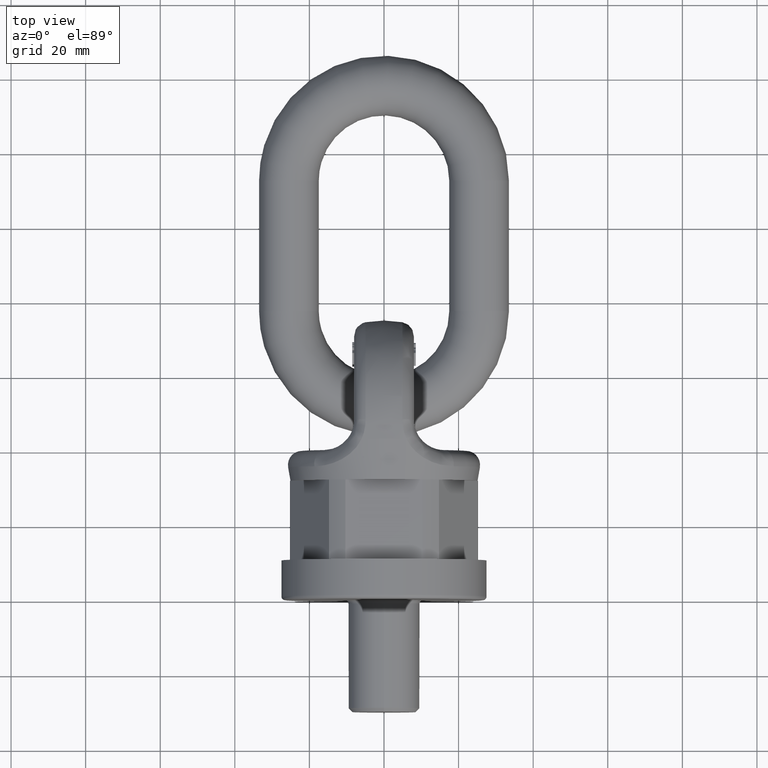
[diagram: clean part render]
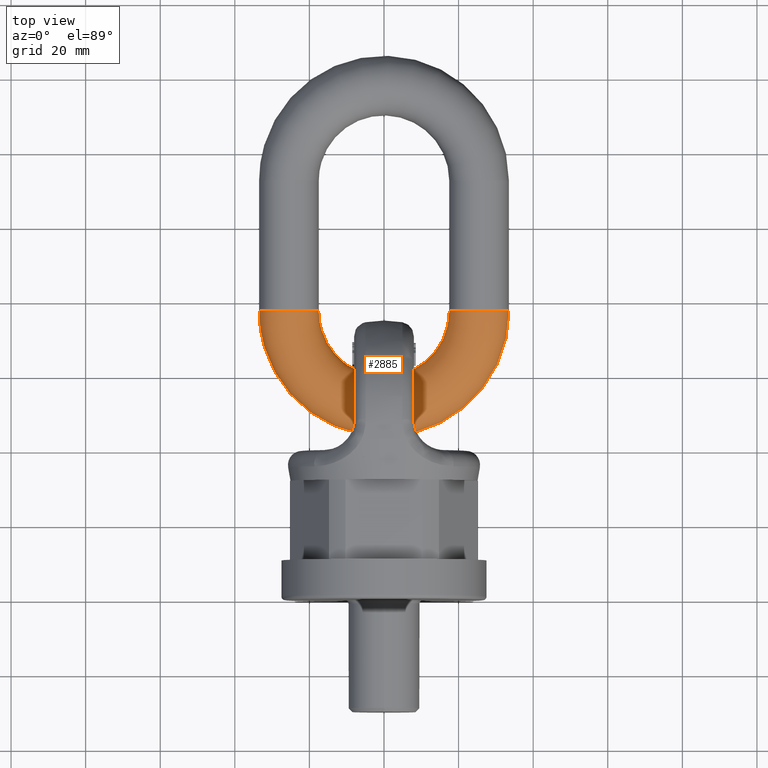
[diagram: same view with one face highlighted and labeled with its STEP entity id]
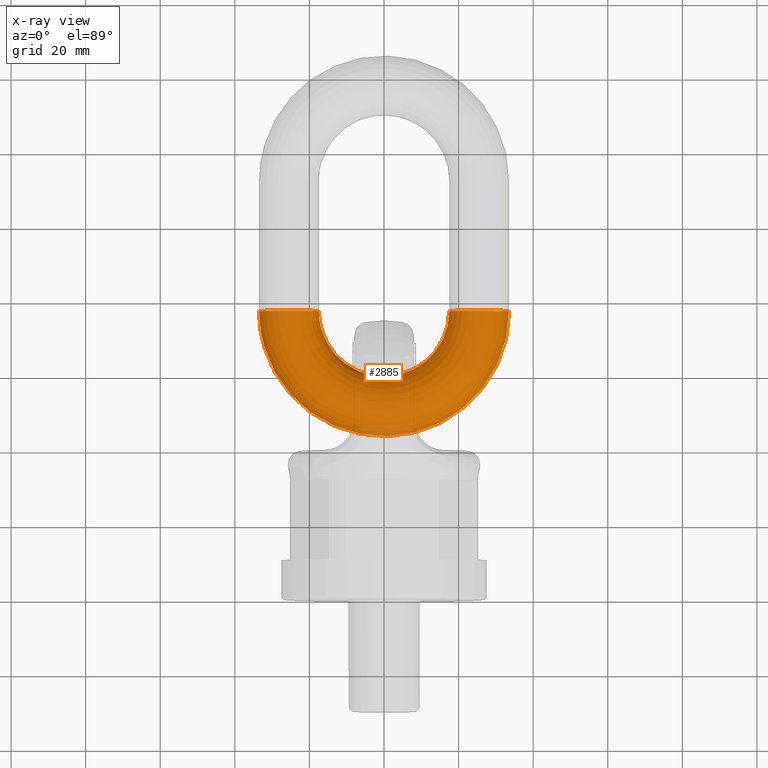
[diagram: x-ray of the same camera — body ghosted, the highlighted face saturated]
A machine part, top view. The second image highlights one B-rep face of the part: STEP entity #2885.
The next image is the same camera in x-ray: the body ghosted, the highlighted face saturated — about 3% of this face is hidden behind the body in this view.
In plain terms, the highlighted toroidal blend (fillet) surface has major radius 25.5 mm and minor (blend) radius 8 mm.
Its self-contained STEP definition (entity closure, byte-faithful):
#1804=TOROIDAL_SURFACE('',#5805,25.5,8.);
#2885=ADVANCED_FACE('',(#3059,#3060),#1804,.T.);
#3059=FACE_BOUND('',#3345,.T.);
#3060=FACE_BOUND('',#3346,.T.);
#3345=EDGE_LOOP('',(#4537));
#3346=EDGE_LOOP('',(#4538));
#4537=ORIENTED_EDGE('',*,*,#5535,.T.);
#4538=ORIENTED_EDGE('',*,*,#5533,.F.);
#4937=VERTEX_POINT('',#9686);
#4939=VERTEX_POINT('',#9691);
#5533=EDGE_CURVE('',#4937,#4937,#5599,.T.);
#5535=EDGE_CURVE('',#4939,#4939,#5601,.T.);
#5599=CIRCLE('',#5801,8.);
#5601=CIRCLE('',#5804,8.);
#5801=AXIS2_PLACEMENT_3D('',#9685,#6553,#6554);
#5804=AXIS2_PLACEMENT_3D('',#9690,#6559,#6560);
#5805=AXIS2_PLACEMENT_3D('',#9692,#6561,#6562);
#6553=DIRECTION('',(-1.21365530983203E-15,1.,0.));
#6554=DIRECTION('',(-1.,-1.73472347597681E-15,0.));
#6559=DIRECTION('',(2.03012210217171E-16,-1.,0.));
#6560=DIRECTION('',(1.,0.,0.));
#6561=DIRECTION('',(0.,0.,-1.));
#6562=DIRECTION('',(-1.,0.,0.));
#9685=CARTESIAN_POINT('',(-25.5,77.5,0.));
#9686=CARTESIAN_POINT('',(-33.5,77.5,0.));
#9690=CARTESIAN_POINT('',(25.5,77.5,0.));
#9691=CARTESIAN_POINT('',(33.5,77.5,0.));
#9692=CARTESIAN_POINT('',(1.38777878078145E-14,77.5,0.));